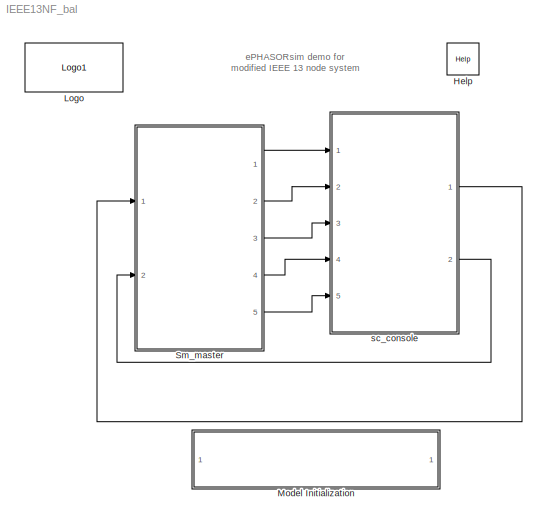
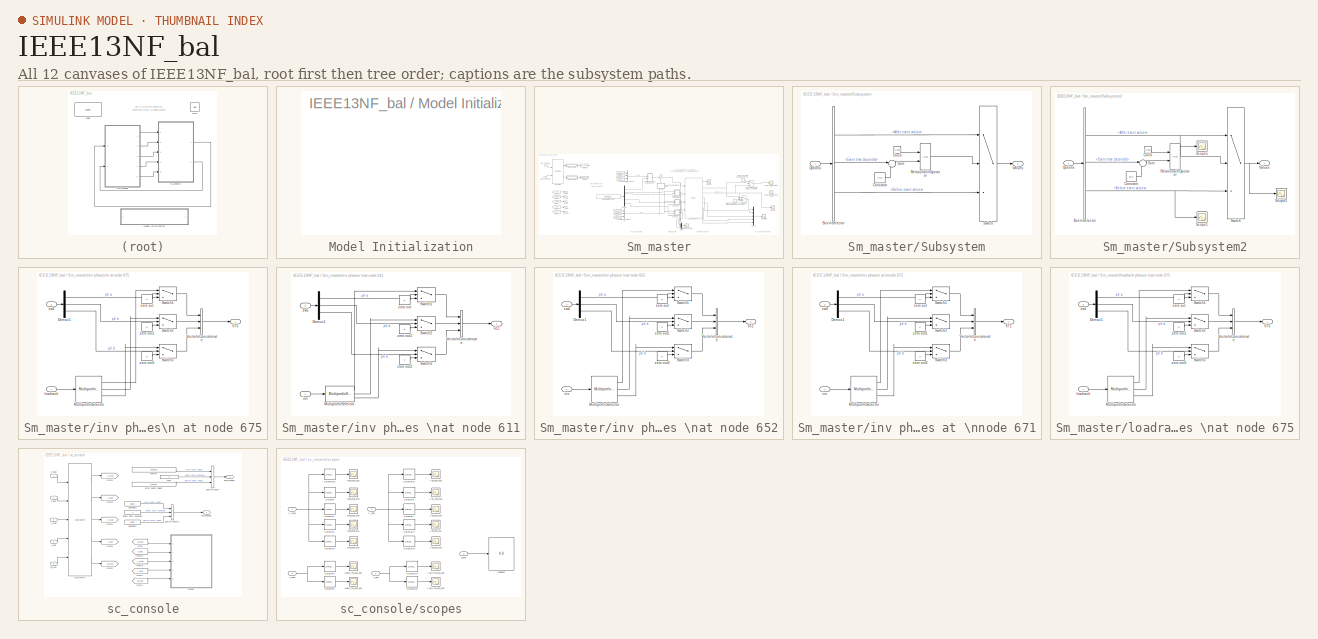
[diagram: thumbnail index - all 12 canvases of the model, root first then tree order]
MODEL IEEE13NF_bal
KIND model
CONFIG InitFcn = Ts=0.01;
CONFIG PostLoadFcn = Ts=0.01;
CONFIG PreLoadFcn = Ts=0.01;
CONFIG StartFcn = Ts=0.01;
BLOCK [Reference] Help  REF=opal_lib/Help
  Ports = []
  SID = 168
  SourceBlock = opal_lib/Help
  SourceType = OpDoc
  docfile = ../help/ePH_IEEE13.html
BLOCK [Reference] Logo  REF=opal_lib/Logo1
  Ports = []
  SID = 169
  SourceBlock = opal_lib/Logo1
  SourceType = Opal-RT logo
  vide = []
BLOCK [SubSystem] Model Initialization
  CopyFcn = set_param(gcb,'LinkStatus','none')
  Ports = []
  RequestExecContextInheritance = off
  SID = 107
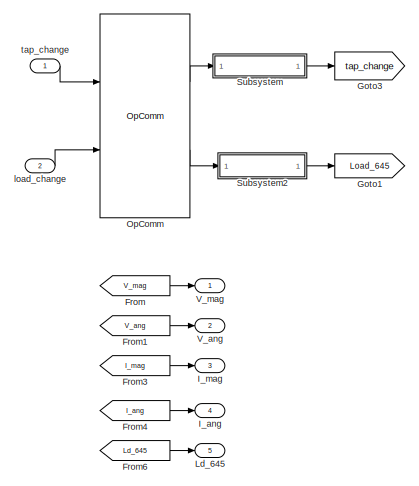
[diagram: Sm_master - part 1/2, middle left region]
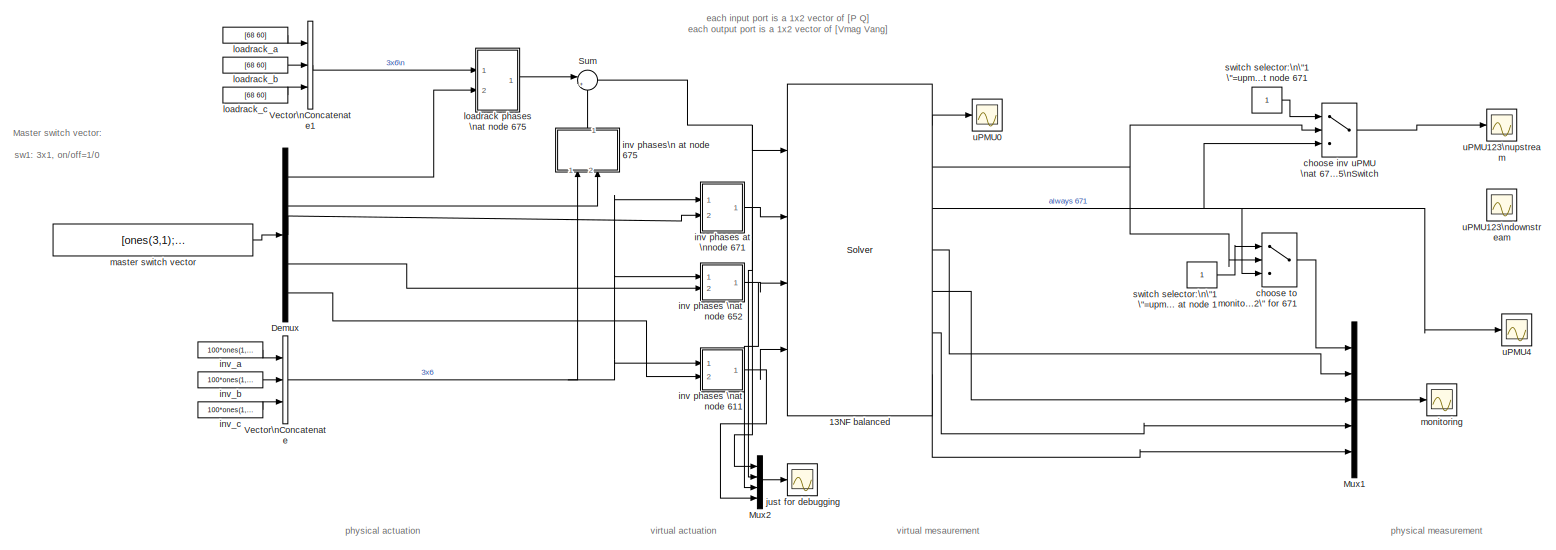
[diagram: Sm_master - part 2/2, most of the canvas]
BLOCK [SubSystem] Sm_master
  Ports = [2, 5]
  RequestExecContextInheritance = off
  SID = 44
BLOCK [Reference] Sm_master/13NF balanced  REF=rtlab_phasor/Solver
  Ports = [4, 7]
  SID = 1
  SourceBlock = rtlab_phasor/Solver
  builtin = on
  capidir = 'CAPI'
  capiprefix = capicomp_
  cyme = 'ieee13.sxst'
  cyme_pf = ''
  cyme_unbalanced = on
  dt = Ts
  dyr = '4992b.dyr'
  epname = System
  exporty = off
  extension = Excel
  fmudir = 'FMU'
  fmuprefix = fmucomp_
  lazy_netlist = on
  logging = off
  np = 1
  optim_threads = off
  perflog_on = off
  pf_export = on
  pf_flat_start = off
  pf_max_it = 100
  pf_smart_start = off
  pf_tol_v = 0.00000001
  powerfactory = 'network.dgs'
  raw = '4992b.raw'
  script_activate_postinit = on
  script_postinit_name = 'manual_python_integration_13NFbal.py'
  sim_mode = Dynamic simulation only (without power-flow)
  xls = '016_GB_IEEE13_balance_all_ver2_OPAL.xls'
BLOCK [Demux] Sm_master/Demux
  DisplayOption = bar
  Outputs = 5
  Ports = [1, 5]
  SID = 605
BLOCK [From] Sm_master/From
  GotoTag = V_mag
  SID = 93
BLOCK [From] Sm_master/From1
  GotoTag = V_ang
  SID = 94
BLOCK [From] Sm_master/From3
  GotoTag = I_mag
  SID = 95
BLOCK [From] Sm_master/From4
  GotoTag = I_ang
  SID = 96
BLOCK [From] Sm_master/From6
  GotoTag = Ld_645
  SID = 97
BLOCK [Goto] Sm_master/Goto1
  GotoTag = Load_645
  SID = 85
BLOCK [Goto] Sm_master/Goto3
  GotoTag = tap_change
  SID = 86
BLOCK [Outport] Sm_master/I_ang
  IconDisplay = Port number
  Port = 4
  SID = 360
BLOCK [Outport] Sm_master/I_mag
  IconDisplay = Port number
  Port = 3
  SID = 359
BLOCK [Outport] Sm_master/Ld_645
  IconDisplay = Port number
  Port = 5
  SID = 361
BLOCK [Mux] Sm_master/Mux1
  DisplayOption = bar
  Inputs = 5
  Ports = [5, 1]
  SID = 514
BLOCK [Mux] Sm_master/Mux2
  DisplayOption = bar
  Ports = [4, 1]
  SID = 632
BLOCK [Reference] Sm_master/OpComm  REF=rtlab/OpComm
  Interpolation = on
  Missed_Data = off
  Offset = off
  Ports = [2, 2]
  SID = 43
  Samples = off
  Sim_Time = off
  SourceBlock = rtlab/OpComm
  SourceType = RT-LAB OpComm
  Synchronization = on
  Threshold = 1.0
  dynSigOut = off
  from_console = 1
  groupe_acq = 1
  nbport = 2
  st = 0
  subsys_rate = 0
  warning_done = off
  writeOpCommFile = off
BLOCK [SubSystem] Sm_master/Subsystem
  Ports = [1, 1]
  RequestExecContextInheritance = off
  SID = 150
BLOCK [BusSelector] Sm_master/Subsystem/Bus\nSelector
  OutputSignals = After event values,Event time (seconds),Before event values
  Ports = [1, 3]
  SID = 152
BLOCK [Clock] Sm_master/Subsystem/Clock
  Decimation = 1
  SID = 153
BLOCK [Constant] Sm_master/Subsystem/Constant
  SID = 154
  Value = Ts/2
BLOCK [Inport] Sm_master/Subsystem/Options
  IconDisplay = Port number
  SID = 151
BLOCK [RelationalOperator] Sm_master/Subsystem/Relational\nOperator
  InputSameDT = off
  OutDataTypeStr = boolean
  Ports = [2, 1]
  SID = 155
BLOCK [Sum] Sm_master/Subsystem/Sum
  IconShape = round
  InputSameDT = off
  Inputs = |+-
  OutDataTypeStr = Inherit: Inherit via internal rule
  Ports = [2, 1]
  SID = 156
  SaturateOnIntegerOverflow = off
BLOCK [Switch] Sm_master/Subsystem/Switch
  InputSameDT = off
  SID = 157
  SaturateOnIntegerOverflow = off
  Threshold = 0.5
BLOCK [Outport] Sm_master/Subsystem/Values
  IconDisplay = Port number
  SID = 158
BLOCK [SubSystem] Sm_master/Subsystem2
  Ports = [1, 1]
  RequestExecContextInheritance = off
  SID = 159
BLOCK [BusSelector] Sm_master/Subsystem2/Bus\nSelector
  OutputSignals = After event values,Event time (seconds),Before event values
  Ports = [1, 3]
  SID = 161
BLOCK [Clock] Sm_master/Subsystem2/Clock
  Decimation = 1
  SID = 162
BLOCK [Constant] Sm_master/Subsystem2/Constant
  SID = 163
  Value = Ts/2
BLOCK [Inport] Sm_master/Subsystem2/Options
  IconDisplay = Port number
  SID = 160
BLOCK [RelationalOperator] Sm_master/Subsystem2/Relational\nOperator
  InputSameDT = off
  OutDataTypeStr = boolean
  Ports = [2, 1]
  SID = 164
BLOCK [Scope] Sm_master/Subsystem2/Scope1
  DataFormat = StructureWithTime
  Floating = off
  LimitDataPoints = off
  NumInputPorts = 1
  Ports = [1]
  SID = 217
  SampleTime = 0
  SaveName = ScopeData14
  ZoomMode = yonly
BLOCK [Scope] Sm_master/Subsystem2/Scope2
  DataFormat = StructureWithTime
  Floating = off
  LimitDataPoints = off
  NumInputPorts = 1
  Ports = [1]
  SID = 218
  SampleTime = 0
  SaveName = ScopeData15
  ZoomMode = yonly
BLOCK [Scope] Sm_master/Subsystem2/Scope5
  DataFormat = StructureWithTime
  Floating = off
  LimitDataPoints = off
  NumInputPorts = 1
  Ports = [1]
  SID = 216
  SampleTime = 0
  SaveName = ScopeData13
  ZoomMode = yonly
BLOCK [Sum] Sm_master/Subsystem2/Sum
  IconShape = round
  InputSameDT = off
  Inputs = |+-
  OutDataTypeStr = Inherit: Inherit via internal rule
  Ports = [2, 1]
  SID = 165
  SaturateOnIntegerOverflow = off
BLOCK [Switch] Sm_master/Subsystem2/Switch
  InputSameDT = off
  SID = 166
  SaturateOnIntegerOverflow = off
  Threshold = 0.5
BLOCK [Outport] Sm_master/Subsystem2/Values
  IconDisplay = Port number
  SID = 167
BLOCK [Sum] Sm_master/Sum
  IconShape = round
  InputSameDT = off
  Inputs = |++
  OutDataTypeStr = Inherit: Inherit via internal rule
  Ports = [2, 1]
  SID = 446
  SaturateOnIntegerOverflow = off
BLOCK [Outport] Sm_master/V_ang
  IconDisplay = Port number
  Port = 2
  SID = 358
BLOCK [Outport] Sm_master/V_mag
  IconDisplay = Port number
  SID = 357
BLOCK [Concatenate] Sm_master/Vector\nConcatenate
  ConcatenateDimension = 2
  Mode = Multidimensional array
  NumInputs = 3
  Ports = [3, 1]
  SID = 608
BLOCK [Concatenate] Sm_master/Vector\nConcatenate1
  ConcatenateDimension = 2
  Mode = Multidimensional array
  NumInputs = 3
  Ports = [3, 1]
  SID = 610
BLOCK [MultiPortSwitch] Sm_master/choose inv uPMU \nat 671 or 675\nSwitch
  InputSameDT = off
  Inputs = 2
  Ports = [3, 1]
  SID = 515
  SaturateOnIntegerOverflow = off
BLOCK [MultiPortSwitch] Sm_master/choose to monitor\n671 or 675\n\"1\" for 675\n\"2\" for 671
  InputSameDT = off
  Inputs = 2
  Ports = [3, 1]
  SID = 517
  SaturateOnIntegerOverflow = off
BLOCK [SubSystem] Sm_master/inv phases \nat node 611
  Ports = [2, 1]
  RequestExecContextInheritance = off
  SID = 590
BLOCK [Outport] Sm_master/inv phases \nat node 611/611
  IconDisplay = Port number
  SID = 602
BLOCK [Demux] Sm_master/inv phases \nat node 611/Demux1
  DisplayOption = bar
  Outputs = 3
  Ports = [1, 3]
  SID = 594
BLOCK [Reference] Sm_master/inv phases \nat node 611/Multiport\nSelector  REF=dspindex/Multiport\nSelector
  Ports = [1, 3]
  SID = 612
  SourceBlock = dspindex/Multiport\nSelector
  SourceType = Multiport Selector
  idxCellArray = { 1, 2, 3 }
  idxErrMode = Clip Index
  rowsOrCols = Columns
BLOCK [Switch] Sm_master/inv phases \nat node 611/Switch1
  Criteria = u2 > Threshold
  InputSameDT = off
  SID = 596
  SaturateOnIntegerOverflow = off
BLOCK [Switch] Sm_master/inv phases \nat node 611/Switch2
  Criteria = u2 > Threshold
  InputSameDT = off
  SID = 597
  SaturateOnIntegerOverflow = off
BLOCK [Switch] Sm_master/inv phases \nat node 611/Switch3
  Criteria = u2 > Threshold
  InputSameDT = off
  SID = 598
  SaturateOnIntegerOverflow = off
BLOCK [Concatenate] Sm_master/inv phases \nat node 611/Vector\nConcatenate
  ConcatenateDimension = 2
  NumInputs = 3
  Ports = [3, 1]
  SID = 623
BLOCK [Inport] Sm_master/inv phases \nat node 611/inv
  IconDisplay = Port number
  SID = 591
BLOCK [Inport] Sm_master/inv phases \nat node 611/sw5
  IconDisplay = Port number
  Port = 2
  SID = 592
BLOCK [Constant] Sm_master/inv phases \nat node 611/zero out
  SID = 599
  Value = 0
BLOCK [Constant] Sm_master/inv phases \nat node 611/zero out1
  SID = 600
  Value = 0
BLOCK [Constant] Sm_master/inv phases \nat node 611/zero out2
  SID = 601
  Value = 0
BLOCK [SubSystem] Sm_master/inv phases \nat node 652
  Ports = [2, 1]
  RequestExecContextInheritance = off
  SID = 577
BLOCK [Outport] Sm_master/inv phases \nat node 652/652
  IconDisplay = Port number
  SID = 589
BLOCK [Demux] Sm_master/inv phases \nat node 652/Demux1
  DisplayOption = bar
  Outputs = 3
  Ports = [1, 3]
  SID = 581
BLOCK [Reference] Sm_master/inv phases \nat node 652/Multiport\nSelector  REF=dspindex/Multiport\nSelector
  Ports = [1, 3]
  SID = 616
  SourceBlock = dspindex/Multiport\nSelector
  SourceType = Multiport Selector
  idxCellArray = { 1, 2, 3 }
  idxErrMode = Clip Index
  rowsOrCols = Columns
BLOCK [Switch] Sm_master/inv phases \nat node 652/Switch1
  Criteria = u2 > Threshold
  InputSameDT = off
  SID = 583
  SaturateOnIntegerOverflow = off
BLOCK [Switch] Sm_master/inv phases \nat node 652/Switch2
  Criteria = u2 > Threshold
  InputSameDT = off
  SID = 584
  SaturateOnIntegerOverflow = off
BLOCK [Switch] Sm_master/inv phases \nat node 652/Switch3
  Criteria = u2 > Threshold
  InputSameDT = off
  SID = 585
  SaturateOnIntegerOverflow = off
BLOCK [Concatenate] Sm_master/inv phases \nat node 652/Vector\nConcatenate
  ConcatenateDimension = 2
  NumInputs = 3
  Ports = [3, 1]
  SID = 622
BLOCK [Inport] Sm_master/inv phases \nat node 652/inv
  IconDisplay = Port number
  SID = 578
BLOCK [Inport] Sm_master/inv phases \nat node 652/sw4
  IconDisplay = Port number
  Port = 2
  SID = 579
BLOCK [Constant] Sm_master/inv phases \nat node 652/zero out
  SID = 586
  Value = 0
BLOCK [Constant] Sm_master/inv phases \nat node 652/zero out1
  SID = 587
  Value = 0
BLOCK [Constant] Sm_master/inv phases \nat node 652/zero out2
  SID = 588
  Value = 0
BLOCK [SubSystem] Sm_master/inv phases at \nnode 671
  Ports = [2, 1]
  RequestExecContextInheritance = off
  SID = 564
BLOCK [Outport] Sm_master/inv phases at \nnode 671/671
  IconDisplay = Port number
  SID = 576
BLOCK [Demux] Sm_master/inv phases at \nnode 671/Demux1
  DisplayOption = bar
  Outputs = 3
  Ports = [1, 3]
  SID = 568
BLOCK [Reference] Sm_master/inv phases at \nnode 671/Multiport\nSelector  REF=dspindex/Multiport\nSelector
  Ports = [1, 3]
  SID = 615
  SourceBlock = dspindex/Multiport\nSelector
  SourceType = Multiport Selector
  idxCellArray = { 1, 2, 3 }
  idxErrMode = Clip Index
  rowsOrCols = Columns
BLOCK [Switch] Sm_master/inv phases at \nnode 671/Switch1
  Criteria = u2 > Threshold
  InputSameDT = off
  SID = 570
  SaturateOnIntegerOverflow = off
BLOCK [Switch] Sm_master/inv phases at \nnode 671/Switch2
  Criteria = u2 > Threshold
  InputSameDT = off
  SID = 571
  SaturateOnIntegerOverflow = off
BLOCK [Switch] Sm_master/inv phases at \nnode 671/Switch3
  Criteria = u2 > Threshold
  InputSameDT = off
  SID = 572
  SaturateOnIntegerOverflow = off
BLOCK [Concatenate] Sm_master/inv phases at \nnode 671/Vector\nConcatenate
  ConcatenateDimension = 2
  NumInputs = 3
  Ports = [3, 1]
  SID = 619
BLOCK [Inport] Sm_master/inv phases at \nnode 671/inv
  IconDisplay = Port number
  SID = 565
BLOCK [Inport] Sm_master/inv phases at \nnode 671/sw3
  IconDisplay = Port number
  Port = 2
  SID = 566
BLOCK [Constant] Sm_master/inv phases at \nnode 671/zero out
  SID = 573
  Value = 0
BLOCK [Constant] Sm_master/inv phases at \nnode 671/zero out1
  SID = 574
  Value = 0
BLOCK [Constant] Sm_master/inv phases at \nnode 671/zero out2
  SID = 575
  Value = 0
BLOCK [SubSystem] Sm_master/inv phases\n at node 675
  Ports = [2, 1]
  RequestExecContextInheritance = off
  SID = 551
BLOCK [Outport] Sm_master/inv phases\n at node 675/675
  IconDisplay = Port number
  SID = 563
BLOCK [Demux] Sm_master/inv phases\n at node 675/Demux1
  DisplayOption = bar
  Outputs = 3
  Ports = [1, 3]
  SID = 555
BLOCK [Reference] Sm_master/inv phases\n at node 675/Multiport\nSelector  REF=dspindex/Multiport\nSelector
  Ports = [1, 3]
  SID = 614
  SourceBlock = dspindex/Multiport\nSelector
  SourceType = Multiport Selector
  idxCellArray = { 1, 2, 3 }
  idxErrMode = Clip Index
  rowsOrCols = Columns
BLOCK [Switch] Sm_master/inv phases\n at node 675/Switch1
  Criteria = u2 > Threshold
  InputSameDT = off
  SID = 557
  SaturateOnIntegerOverflow = off
BLOCK [Switch] Sm_master/inv phases\n at node 675/Switch2
  Criteria = u2 > Threshold
  InputSameDT = off
  SID = 558
  SaturateOnIntegerOverflow = off
BLOCK [Switch] Sm_master/inv phases\n at node 675/Switch3
  Criteria = u2 > Threshold
  InputSameDT = off
  SID = 559
  SaturateOnIntegerOverflow = off
BLOCK [Concatenate] Sm_master/inv phases\n at node 675/Vector\nConcatenate
  ConcatenateDimension = 2
  NumInputs = 3
  Ports = [3, 1]
  SID = 624
BLOCK [Inport] Sm_master/inv phases\n at node 675/loadrack
  IconDisplay = Port number
  SID = 552
BLOCK [Inport] Sm_master/inv phases\n at node 675/sw2
  IconDisplay = Port number
  Port = 2
  SID = 553
BLOCK [Constant] Sm_master/inv phases\n at node 675/zero out
  SID = 560
  Value = 0
BLOCK [Constant] Sm_master/inv phases\n at node 675/zero out1
  SID = 561
  Value = 0
BLOCK [Constant] Sm_master/inv phases\n at node 675/zero out2
  SID = 562
  Value = 0
BLOCK [Constant] Sm_master/inv_a
  SID = 448
  Value = 100*ones(1,2)
BLOCK [Constant] Sm_master/inv_b
  SID = 626
  Value = 100*ones(1,2)
BLOCK [Constant] Sm_master/inv_c
  SID = 627
  Value = 100*ones(1,2)
BLOCK [Scope] Sm_master/just for debugging
  Floating = off
  NumInputPorts = 1
  Ports = [1]
  SID = 631
  SaveName = ScopeData22
BLOCK [Inport] Sm_master/load_change
  IconDisplay = Port number
  Port = 2
  SID = 84
BLOCK [SubSystem] Sm_master/loadrack phases \nat node 675
  Ports = [2, 1]
  RequestExecContextInheritance = off
  SID = 520
BLOCK [Outport] Sm_master/loadrack phases \nat node 675/675
  IconDisplay = Port number
  SID = 533
BLOCK [Demux] Sm_master/loadrack phases \nat node 675/Demux1
  DisplayOption = bar
  Outputs = 3
  Ports = [1, 3]
  SID = 550
BLOCK [Reference] Sm_master/loadrack phases \nat node 675/Multiport\nSelector  REF=dspindex/Multiport\nSelector
  Ports = [1, 3]
  SID = 613
  SourceBlock = dspindex/Multiport\nSelector
  SourceType = Multiport Selector
  idxCellArray = { 1, 2, 3 }
  idxErrMode = Clip Index
  rowsOrCols = Columns
BLOCK [Switch] Sm_master/loadrack phases \nat node 675/Switch1
  Criteria = u2 > Threshold
  InputSameDT = off
  SID = 527
  SaturateOnIntegerOverflow = off
BLOCK [Switch] Sm_master/loadrack phases \nat node 675/Switch2
  Criteria = u2 > Threshold
  InputSameDT = off
  SID = 528
  SaturateOnIntegerOverflow = off
BLOCK [Switch] Sm_master/loadrack phases \nat node 675/Switch3
  Criteria = u2 > Threshold
  InputSameDT = off
  SID = 529
  SaturateOnIntegerOverflow = off
BLOCK [Concatenate] Sm_master/loadrack phases \nat node 675/Vector\nConcatenate
  ConcatenateDimension = 2
  NumInputs = 3
  Ports = [3, 1]
  SID = 625
BLOCK [Inport] Sm_master/loadrack phases \nat node 675/loadrack
  IconDisplay = Port number
  SID = 521
BLOCK [Inport] Sm_master/loadrack phases \nat node 675/sw1
  IconDisplay = Port number
  Port = 2
  SID = 549
BLOCK [Constant] Sm_master/loadrack phases \nat node 675/zero out
  SID = 530
  Value = 0
BLOCK [Constant] Sm_master/loadrack phases \nat node 675/zero out1
  SID = 531
  Value = 0
BLOCK [Constant] Sm_master/loadrack phases \nat node 675/zero out2
  SID = 532
  Value = 0
BLOCK [Constant] Sm_master/loadrack_a
  SID = 628
  Value = [68 60]
BLOCK [Constant] Sm_master/loadrack_b
  SID = 629
  Value = [68 60]
BLOCK [Constant] Sm_master/loadrack_c
  SID = 630
  Value = [68 60]
BLOCK [Constant] Sm_master/master switch vector
  SID = 603
  Value = [ones(3,1); zeros(3,1); ones(9,1)]
BLOCK [Scope] Sm_master/monitoring
  Floating = off
  NumInputPorts = 1
  Ports = [1]
  SID = 519
  SaveName = ScopeData21
BLOCK [Constant] Sm_master/switch selector:\n\"1\"=upmu at node 675\n\"2\"=upmu at node 1
  SID = 518
BLOCK [Constant] Sm_master/switch selector:\n\"1\"=upmu at node 675\n\"2\"=upmu at node 671
  SID = 516
BLOCK [Inport] Sm_master/tap_change
  IconDisplay = Port number
  SID = 51
BLOCK [Scope] Sm_master/uPMU0
  Floating = off
  NumInputPorts = 1
  Ports = [1]
  SID = 404
  SaveName = ScopeData1
BLOCK [Scope] Sm_master/uPMU123\ndownstream
  Floating = off
  NumInputPorts = 1
  Ports = [1]
  SID = 405
  SaveName = ScopeData2
BLOCK [Scope] Sm_master/uPMU123\nupstream
  Floating = off
  NumInputPorts = 1
  Ports = [1]
  SID = 509
  SaveName = ScopeData17
BLOCK [Scope] Sm_master/uPMU4
  Floating = off
  NumInputPorts = 1
  Ports = [1]
  SID = 406
  SaveName = ScopeData16
BLOCK [SubSystem] sc_console
  Ports = [5, 2]
  RequestExecContextInheritance = off
  SID = 60
BLOCK [BusCreator] sc_console/Bus\nCreator
  DisplayOption = bar
  Inputs = 3
  Ports = [3, 1]
  SID = 111
BLOCK [BusCreator] sc_console/Bus\nCreator1
  DisplayOption = bar
  Inputs = 3
  Ports = [3, 1]
  SID = 112
BLOCK [Constant] sc_console/Event Time (seconds)
  SID = 113
BLOCK [From] sc_console/From
  GotoTag = V_mag
  SID = 114
BLOCK [From] sc_console/From1
  GotoTag = Ld_645
  SID = 115
BLOCK [From] sc_console/From2
  GotoTag = V_ang
  SID = 116
BLOCK [From] sc_console/From3
  GotoTag = I_mag
  SID = 300
BLOCK [From] sc_console/From4
  GotoTag = I_ang
  SID = 301
BLOCK [Goto] sc_console/Goto1
  GotoTag = V_mag
  SID = 117
BLOCK [Goto] sc_console/Goto2
  GotoTag = Ld_645
  SID = 118
BLOCK [Goto] sc_console/Goto3
  GotoTag = V_ang
  SID = 119
BLOCK [Goto] sc_console/Goto4
  GotoTag = I_mag
  SID = 309
BLOCK [Goto] sc_console/Goto5
  GotoTag = I_ang
  SID = 307
BLOCK [Inport] sc_console/I_ang
  IconDisplay = Port number
  Port = 4
  SID = 305
BLOCK [Inport] sc_console/I_mag
  IconDisplay = Port number
  Port = 3
  SID = 304
BLOCK [Inport] sc_console/Ld_645
  IconDisplay = Port number
  Port = 5
  SID = 110
BLOCK [Constant] sc_console/LineFault0
  SID = 120
  Value = [8 8 8]
BLOCK [Constant] sc_console/LineFault1
  SID = 121
  Value = [0 0 0]
BLOCK [Reference] sc_console/OpComm1  REF=rtlab/OpComm
  Interpolation = on
  Missed_Data = off
  Offset = off
  Ports = [5, 5]
  SID = 122
  Samples = off
  Sim_Time = off
  SourceBlock = rtlab/OpComm
  SourceType = RT-LAB OpComm
  Synchronization = on
  Threshold = 1.0
  dynSigOut = off
  from_console = 0
  groupe_acq = 1
  nbport = 5
  st = 0
  subsys_rate = 0
  warning_done = off
  writeOpCommFile = off
BLOCK [Inport] sc_console/V-ang
  IconDisplay = Port number
  Port = 2
  SID = 109
BLOCK [Inport] sc_console/V_mag
  IconDisplay = Port number
  SID = 108
BLOCK [Constant] sc_console/after event values
  SID = 123
  Value = [170,125]
BLOCK [Constant] sc_console/before
  SID = 124
  Value = [340,250]
BLOCK [Outport] sc_console/load_change
  IconDisplay = Port number
  Port = 2
  SID = 148
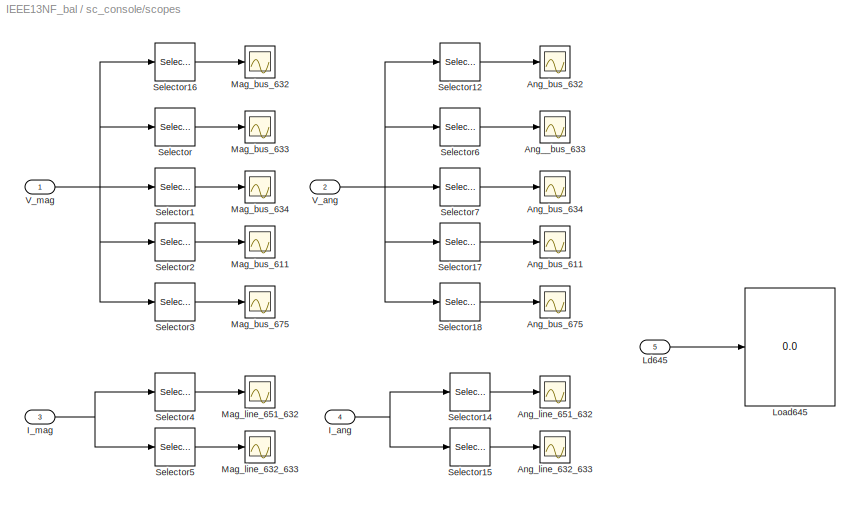
BLOCK [SubSystem] sc_console/scopes
  Ports = [5]
  RequestExecContextInheritance = off
  SID = 125
BLOCK [Scope] sc_console/scopes/Ang__bus_633
  DataFormat = StructureWithTime
  Floating = off
  LimitDataPoints = off
  NumInputPorts = 1
  Ports = [1]
  SID = 129
  SampleTime = 0
  SaveName = ScopeData8
  YMax = 1.07
  YMin = 0.92
BLOCK [Scope] sc_console/scopes/Ang_bus_611
  DataFormat = StructureWithTime
  Floating = off
  LimitDataPoints = off
  NumInputPorts = 1
  Ports = [1]
  SID = 131
  SampleTime = 0
  SaveName = ScopeData10
  YMax = 1.07
  YMin = 0.92
BLOCK [Scope] sc_console/scopes/Ang_bus_632
  DataFormat = StructureWithTime
  Floating = off
  LimitDataPoints = off
  NumInputPorts = 1
  Ports = [1]
  SID = 332
  SampleTime = 0
  SaveName = ScopeData18
  YMax = 1.07
  YMin = 0.92
BLOCK [Scope] sc_console/scopes/Ang_bus_634
  DataFormat = StructureWithTime
  Floating = off
  LimitDataPoints = off
  NumInputPorts = 1
  Ports = [1]
  SID = 130
  SampleTime = 0
  SaveName = ScopeData9
  YMax = 1.07
  YMin = 0.92
BLOCK [Scope] sc_console/scopes/Ang_bus_675
  DataFormat = StructureWithTime
  Floating = off
  LimitDataPoints = off
  NumInputPorts = 1
  Ports = [1]
  SID = 132
  SampleTime = 0
  SaveName = ScopeData11
  YMax = 1.07
  YMin = 0.92
BLOCK [Scope] sc_console/scopes/Ang_line_632_633
  DataFormat = StructureWithTime
  Floating = off
  LimitDataPoints = off
  NumInputPorts = 1
  Ports = [1]
  SID = 337
  SampleTime = 0
  SaveName = ScopeData20
  YMax = 1.07
  YMin = 0.92
BLOCK [Scope] sc_console/scopes/Ang_line_651_632
  DataFormat = StructureWithTime
  Floating = off
  LimitDataPoints = off
  NumInputPorts = 1
  Ports = [1]
  SID = 312
  SampleTime = 0
  YMax = 1.07
  YMin = 0.92
BLOCK [Inport] sc_console/scopes/I_ang
  IconDisplay = Port number
  Port = 4
  SID = 311
BLOCK [Inport] sc_console/scopes/I_mag
  IconDisplay = Port number
  Port = 3
  SID = 310
BLOCK [Inport] sc_console/scopes/Ld645
  IconDisplay = Port number
  Port = 5
  SID = 128
BLOCK [Display] sc_console/scopes/Load645
  Decimation = 1
  Ports = [1]
  SID = 133
BLOCK [Scope] sc_console/scopes/Mag_bus_611
  DataFormat = StructureWithTime
  Floating = off
  LimitDataPoints = off
  NumInputPorts = 1
  Ports = [1]
  SID = 136
  SampleTime = 0
  SaveName = ScopeData6
  YMax = 1.07
  YMin = 0.92
  ZoomMode = yonly
BLOCK [Scope] sc_console/scopes/Mag_bus_632
  DataFormat = StructureWithTime
  Floating = off
  LimitDataPoints = off
  NumInputPorts = 1
  Ports = [1]
  SID = 330
  SampleTime = 0
  SaveName = ScopeData3
  YMax = 1.07
  YMin = 0.92
BLOCK [Scope] sc_console/scopes/Mag_bus_633
  DataFormat = StructureWithTime
  Floating = off
  LimitDataPoints = off
  NumInputPorts = 1
  Ports = [1]
  SID = 134
  SampleTime = 0
  SaveName = ScopeData4
  YMax = 1.07
  YMin = 0.92
BLOCK [Scope] sc_console/scopes/Mag_bus_634
  DataFormat = StructureWithTime
  Floating = off
  LimitDataPoints = off
  NumInputPorts = 1
  Ports = [1]
  SID = 135
  SampleTime = 0
  SaveName = ScopeData5
  YMax = 1.07
  YMin = 0.92
BLOCK [Scope] sc_console/scopes/Mag_bus_675
  DataFormat = StructureWithTime
  Floating = off
  LimitDataPoints = off
  NumInputPorts = 1
  Ports = [1]
  SID = 137
  SampleTime = 0
  SaveName = ScopeData7
  YMax = 1.07
  YMin = 0.92
BLOCK [Scope] sc_console/scopes/Mag_line_632_633
  DataFormat = StructureWithTime
  Floating = off
  LimitDataPoints = off
  NumInputPorts = 1
  Ports = [1]
  SID = 335
  SampleTime = 0
  SaveName = ScopeData19
  YMax = 1.07
  YMin = 0.92
  ZoomMode = xonly
BLOCK [Scope] sc_console/scopes/Mag_line_651_632
  DataFormat = StructureWithTime
  Floating = off
  LimitDataPoints = off
  NumInputPorts = 1
  Ports = [1]
  SID = 316
  SampleTime = 0
  SaveName = ScopeData12
  YMax = 1.07
  YMin = 0.92
  ZoomMode = yonly
BLOCK [Selector] sc_console/scopes/Selector
  Indices = [1 2 3]
  InputPortWidth = 13
  Ports = [1, 1]
  SID = 138
BLOCK [Selector] sc_console/scopes/Selector1
  Indices = [4 5 6]
  InputPortWidth = 13
  Ports = [1, 1]
  SID = 139
BLOCK [Selector] sc_console/scopes/Selector12
  Indices = [11 12 13]
  InputPortWidth = 13
  Ports = [1, 1]
  SID = 349
BLOCK [Selector] sc_console/scopes/Selector14
  Indices = [1 2 3]
  InputPortWidth = 6
  Ports = [1, 1]
  SID = 326
BLOCK [Selector] sc_console/scopes/Selector15
  Indices = [4 5 6]
  InputPortWidth = 6
  Ports = [1, 1]
  SID = 327
BLOCK [Selector] sc_console/scopes/Selector16
  Indices = [11 12 13]
  InputPortWidth = 13
  Ports = [1, 1]
  SID = 334
BLOCK [Selector] sc_console/scopes/Selector17
  Indices = [7]
  InputPortWidth = 13
  Ports = [1, 1]
  SID = 350
BLOCK [Selector] sc_console/scopes/Selector18
  Indices = [8 9 10]
  InputPortWidth = 13
  Ports = [1, 1]
  SID = 351
BLOCK [Selector] sc_console/scopes/Selector2
  Indices = [7]
  InputPortWidth = 13
  Ports = [1, 1]
  SID = 142
BLOCK [Selector] sc_console/scopes/Selector3
  Indices = [8 9 10]
  InputPortWidth = 13
  Ports = [1, 1]
  SID = 143
BLOCK [Selector] sc_console/scopes/Selector4
  Indices = [1 2 3]
  InputPortWidth = 6
  Ports = [1, 1]
  SID = 320
BLOCK [Selector] sc_console/scopes/Selector5
  Indices = [4 5 6]
  InputPortWidth = 6
  Ports = [1, 1]
  SID = 321
BLOCK [Selector] sc_console/scopes/Selector6
  Indices = [1 2 3]
  InputPortWidth = 13
  Ports = [1, 1]
  SID = 347
BLOCK [Selector] sc_console/scopes/Selector7
  Indices = [4 5 6]
  InputPortWidth = 13
  Ports = [1, 1]
  SID = 348
BLOCK [Inport] sc_console/scopes/V_ang
  IconDisplay = Port number
  Port = 2
  SID = 127
BLOCK [Inport] sc_console/scopes/V_mag
  IconDisplay = Port number
  SID = 126
BLOCK [Outport] sc_console/tap_change
  IconDisplay = Port number
  SID = 147
BLOCK [Constant] sc_console/time
  SID = 146
  Value = 5
ANNOTATION (root): ePHASORsim demo for \nmodified IEEE 13 node system
ANNOTATION Sm_master: \n \n Master switch vector: \n sw1: 3x1, on/off=1/0 \n sw2: 3x1 \n sw3: 3x1 \n sw4: 3x1 \n sw5: 3x1 \n hence this vector would be 15x1
ANNOTATION Sm_master: each input port is a 1x2 vector of [P Q]\neach output port is a 1x2 vector of [Vmag Vang]
ANNOTATION Sm_master: physical actuation
ANNOTATION Sm_master: physical measurement
ANNOTATION Sm_master: virtual actuation
ANNOTATION Sm_master: virtual mesaurement
LINE Sm_master/13NF balanced:1 -> Sm_master/uPMU0:1
NET Sm_master/13NF balanced:2 -> Sm_master/choose inv uPMU \nat 671 or 675\nSwitch:2, Sm_master/choose to monitor\n671 or 675\n\"1\" for 675\n\"2\" for 671:2
NET Sm_master/13NF balanced:3 -> Sm_master/choose inv uPMU \nat 671 or 675\nSwitch:3, Sm_master/choose to monitor\n671 or 675\n\"1\" for 675\n\"2\" for 671:3, Sm_master/uPMU4:1
LINE Sm_master/13NF balanced:4 -> Sm_master/Mux1:2
LINE Sm_master/13NF balanced:5 -> Sm_master/Mux1:3
LINE Sm_master/13NF balanced:6 -> Sm_master/Mux1:4
LINE Sm_master/13NF balanced:7 -> Sm_master/Mux1:5
LINE Sm_master/Demux:1 -> Sm_master/loadrack phases \nat node 675:2
LINE Sm_master/Demux:2 -> Sm_master/inv phases\n at node 675:2
LINE Sm_master/Demux:3 -> Sm_master/inv phases at \nnode 671:2
LINE Sm_master/Demux:4 -> Sm_master/inv phases \nat node 652:2
LINE Sm_master/Demux:5 -> Sm_master/inv phases \nat node 611:2
LINE Sm_master/From1:1 -> Sm_master/V_ang:1
LINE Sm_master/From3:1 -> Sm_master/I_mag:1
LINE Sm_master/From4:1 -> Sm_master/I_ang:1
LINE Sm_master/From6:1 -> Sm_master/Ld_645:1
LINE Sm_master/From:1 -> Sm_master/V_mag:1
LINE Sm_master/Mux1:1 -> Sm_master/monitoring:1
LINE Sm_master/Mux2:1 -> Sm_master/just for debugging:1
LINE Sm_master/OpComm:1 -> Sm_master/Subsystem:1
LINE Sm_master/OpComm:2 -> Sm_master/Subsystem2:1
LINE Sm_master/Subsystem/Bus\nSelector:1 -> Sm_master/Subsystem/Switch:1
LINE Sm_master/Subsystem/Bus\nSelector:2 -> Sm_master/Subsystem/Sum:1
LINE Sm_master/Subsystem/Bus\nSelector:3 -> Sm_master/Subsystem/Switch:3
LINE Sm_master/Subsystem/Clock:1 -> Sm_master/Subsystem/Relational\nOperator:1
LINE Sm_master/Subsystem/Constant:1 -> Sm_master/Subsystem/Sum:2
LINE Sm_master/Subsystem/Options:1 -> Sm_master/Subsystem/Bus\nSelector:1
LINE Sm_master/Subsystem/Relational\nOperator:1 -> Sm_master/Subsystem/Switch:2
LINE Sm_master/Subsystem/Sum:1 -> Sm_master/Subsystem/Relational\nOperator:2
LINE Sm_master/Subsystem/Switch:1 -> Sm_master/Subsystem/Values:1
NET Sm_master/Subsystem2/Bus\nSelector:1 -> Sm_master/Subsystem2/Scope5:1, Sm_master/Subsystem2/Switch:1
LINE Sm_master/Subsystem2/Bus\nSelector:2 -> Sm_master/Subsystem2/Sum:1
NET Sm_master/Subsystem2/Bus\nSelector:3 -> Sm_master/Subsystem2/Scope1:1, Sm_master/Subsystem2/Switch:3
LINE Sm_master/Subsystem2/Clock:1 -> Sm_master/Subsystem2/Relational\nOperator:1
LINE Sm_master/Subsystem2/Constant:1 -> Sm_master/Subsystem2/Sum:2
LINE Sm_master/Subsystem2/Options:1 -> Sm_master/Subsystem2/Bus\nSelector:1
LINE Sm_master/Subsystem2/Relational\nOperator:1 -> Sm_master/Subsystem2/Switch:2
LINE Sm_master/Subsystem2/Sum:1 -> Sm_master/Subsystem2/Relational\nOperator:2
NET Sm_master/Subsystem2/Switch:1 -> Sm_master/Subsystem2/Scope2:1, Sm_master/Subsystem2/Values:1
LINE Sm_master/Subsystem2:1 -> Sm_master/Goto1:1
LINE Sm_master/Subsystem:1 -> Sm_master/Goto3:1
NET Sm_master/Sum:1 -> Sm_master/13NF balanced:1, Sm_master/Mux2:1
LINE Sm_master/Vector\nConcatenate1:1 -> Sm_master/loadrack phases \nat node 675:1
NET Sm_master/Vector\nConcatenate:1 -> Sm_master/inv phases \nat node 611:1, Sm_master/inv phases \nat node 652:1, Sm_master/inv phases at \nnode 671:1, Sm_master/inv phases\n at node 675:1
LINE Sm_master/choose inv uPMU \nat 671 or 675\nSwitch:1 -> Sm_master/uPMU123\nupstream:1
LINE Sm_master/choose to monitor\n671 or 675\n\"1\" for 675\n\"2\" for 671:1 -> Sm_master/Mux1:1
LINE Sm_master/inv phases \nat node 611/Demux1:1 -> Sm_master/inv phases \nat node 611/Switch1:2
LINE Sm_master/inv phases \nat node 611/Demux1:2 -> Sm_master/inv phases \nat node 611/Switch2:2
LINE Sm_master/inv phases \nat node 611/Demux1:3 -> Sm_master/inv phases \nat node 611/Switch3:2
LINE Sm_master/inv phases \nat node 611/Multiport\nSelector:1 -> Sm_master/inv phases \nat node 611/Switch1:1
LINE Sm_master/inv phases \nat node 611/Multiport\nSelector:2 -> Sm_master/inv phases \nat node 611/Switch2:1
LINE Sm_master/inv phases \nat node 611/Multiport\nSelector:3 -> Sm_master/inv phases \nat node 611/Switch3:1
LINE Sm_master/inv phases \nat node 611/Switch1:1 -> Sm_master/inv phases \nat node 611/Vector\nConcatenate:1
LINE Sm_master/inv phases \nat node 611/Switch2:1 -> Sm_master/inv phases \nat node 611/Vector\nConcatenate:2
LINE Sm_master/inv phases \nat node 611/Switch3:1 -> Sm_master/inv phases \nat node 611/Vector\nConcatenate:3
LINE Sm_master/inv phases \nat node 611/Vector\nConcatenate:1 -> Sm_master/inv phases \nat node 611/611:1
LINE Sm_master/inv phases \nat node 611/inv:1 -> Sm_master/inv phases \nat node 611/Multiport\nSelector:1
LINE Sm_master/inv phases \nat node 611/sw5:1 -> Sm_master/inv phases \nat node 611/Demux1:1
LINE Sm_master/inv phases \nat node 611/zero out1:1 -> Sm_master/inv phases \nat node 611/Switch2:3
LINE Sm_master/inv phases \nat node 611/zero out2:1 -> Sm_master/inv phases \nat node 611/Switch3:3
LINE Sm_master/inv phases \nat node 611/zero out:1 -> Sm_master/inv phases \nat node 611/Switch1:3
NET Sm_master/inv phases \nat node 611:1 -> Sm_master/13NF balanced:4, Sm_master/Mux2:4
LINE Sm_master/inv phases \nat node 652/Demux1:1 -> Sm_master/inv phases \nat node 652/Switch1:2
LINE Sm_master/inv phases \nat node 652/Demux1:2 -> Sm_master/inv phases \nat node 652/Switch2:2
LINE Sm_master/inv phases \nat node 652/Demux1:3 -> Sm_master/inv phases \nat node 652/Switch3:2
LINE Sm_master/inv phases \nat node 652/Multiport\nSelector:1 -> Sm_master/inv phases \nat node 652/Switch1:1
LINE Sm_master/inv phases \nat node 652/Multiport\nSelector:2 -> Sm_master/inv phases \nat node 652/Switch2:1
LINE Sm_master/inv phases \nat node 652/Multiport\nSelector:3 -> Sm_master/inv phases \nat node 652/Switch3:1
LINE Sm_master/inv phases \nat node 652/Switch1:1 -> Sm_master/inv phases \nat node 652/Vector\nConcatenate:1
LINE Sm_master/inv phases \nat node 652/Switch2:1 -> Sm_master/inv phases \nat node 652/Vector\nConcatenate:2
LINE Sm_master/inv phases \nat node 652/Switch3:1 -> Sm_master/inv phases \nat node 652/Vector\nConcatenate:3
LINE Sm_master/inv phases \nat node 652/Vector\nConcatenate:1 -> Sm_master/inv phases \nat node 652/652:1
LINE Sm_master/inv phases \nat node 652/inv:1 -> Sm_master/inv phases \nat node 652/Multiport\nSelector:1
LINE Sm_master/inv phases \nat node 652/sw4:1 -> Sm_master/inv phases \nat node 652/Demux1:1
LINE Sm_master/inv phases \nat node 652/zero out1:1 -> Sm_master/inv phases \nat node 652/Switch2:3
LINE Sm_master/inv phases \nat node 652/zero out2:1 -> Sm_master/inv phases \nat node 652/Switch3:3
LINE Sm_master/inv phases \nat node 652/zero out:1 -> Sm_master/inv phases \nat node 652/Switch1:3
NET Sm_master/inv phases \nat node 652:1 -> Sm_master/13NF balanced:3, Sm_master/Mux2:3
LINE Sm_master/inv phases at \nnode 671/Demux1:1 -> Sm_master/inv phases at \nnode 671/Switch1:2
LINE Sm_master/inv phases at \nnode 671/Demux1:2 -> Sm_master/inv phases at \nnode 671/Switch2:2
LINE Sm_master/inv phases at \nnode 671/Demux1:3 -> Sm_master/inv phases at \nnode 671/Switch3:2
LINE Sm_master/inv phases at \nnode 671/Multiport\nSelector:1 -> Sm_master/inv phases at \nnode 671/Switch1:1
LINE Sm_master/inv phases at \nnode 671/Multiport\nSelector:2 -> Sm_master/inv phases at \nnode 671/Switch2:1
LINE Sm_master/inv phases at \nnode 671/Multiport\nSelector:3 -> Sm_master/inv phases at \nnode 671/Switch3:1
LINE Sm_master/inv phases at \nnode 671/Switch1:1 -> Sm_master/inv phases at \nnode 671/Vector\nConcatenate:1
LINE Sm_master/inv phases at \nnode 671/Switch2:1 -> Sm_master/inv phases at \nnode 671/Vector\nConcatenate:2
LINE Sm_master/inv phases at \nnode 671/Switch3:1 -> Sm_master/inv phases at \nnode 671/Vector\nConcatenate:3
LINE Sm_master/inv phases at \nnode 671/Vector\nConcatenate:1 -> Sm_master/inv phases at \nnode 671/671:1
LINE Sm_master/inv phases at \nnode 671/inv:1 -> Sm_master/inv phases at \nnode 671/Multiport\nSelector:1
LINE Sm_master/inv phases at \nnode 671/sw3:1 -> Sm_master/inv phases at \nnode 671/Demux1:1
LINE Sm_master/inv phases at \nnode 671/zero out1:1 -> Sm_master/inv phases at \nnode 671/Switch2:3
LINE Sm_master/inv phases at \nnode 671/zero out2:1 -> Sm_master/inv phases at \nnode 671/Switch3:3
LINE Sm_master/inv phases at \nnode 671/zero out:1 -> Sm_master/inv phases at \nnode 671/Switch1:3
NET Sm_master/inv phases at \nnode 671:1 -> Sm_master/13NF balanced:2, Sm_master/Mux2:2
LINE Sm_master/inv phases\n at node 675/Demux1:1 -> Sm_master/inv phases\n at node 675/Switch1:2
LINE Sm_master/inv phases\n at node 675/Demux1:2 -> Sm_master/inv phases\n at node 675/Switch2:2
LINE Sm_master/inv phases\n at node 675/Demux1:3 -> Sm_master/inv phases\n at node 675/Switch3:2
LINE Sm_master/inv phases\n at node 675/Multiport\nSelector:1 -> Sm_master/inv phases\n at node 675/Switch1:1
LINE Sm_master/inv phases\n at node 675/Multiport\nSelector:2 -> Sm_master/inv phases\n at node 675/Switch2:1
LINE Sm_master/inv phases\n at node 675/Multiport\nSelector:3 -> Sm_master/inv phases\n at node 675/Switch3:1
LINE Sm_master/inv phases\n at node 675/Switch1:1 -> Sm_master/inv phases\n at node 675/Vector\nConcatenate:1
LINE Sm_master/inv phases\n at node 675/Switch2:1 -> Sm_master/inv phases\n at node 675/Vector\nConcatenate:2
LINE Sm_master/inv phases\n at node 675/Switch3:1 -> Sm_master/inv phases\n at node 675/Vector\nConcatenate:3
LINE Sm_master/inv phases\n at node 675/Vector\nConcatenate:1 -> Sm_master/inv phases\n at node 675/675:1
LINE Sm_master/inv phases\n at node 675/loadrack:1 -> Sm_master/inv phases\n at node 675/Multiport\nSelector:1
LINE Sm_master/inv phases\n at node 675/sw2:1 -> Sm_master/inv phases\n at node 675/Demux1:1
LINE Sm_master/inv phases\n at node 675/zero out1:1 -> Sm_master/inv phases\n at node 675/Switch2:3
LINE Sm_master/inv phases\n at node 675/zero out2:1 -> Sm_master/inv phases\n at node 675/Switch3:3
LINE Sm_master/inv phases\n at node 675/zero out:1 -> Sm_master/inv phases\n at node 675/Switch1:3
LINE Sm_master/inv phases\n at node 675:1 -> Sm_master/Sum:2
LINE Sm_master/inv_a:1 -> Sm_master/Vector\nConcatenate:1
LINE Sm_master/inv_b:1 -> Sm_master/Vector\nConcatenate:2
LINE Sm_master/inv_c:1 -> Sm_master/Vector\nConcatenate:3
LINE Sm_master/load_change:1 -> Sm_master/OpComm:2
LINE Sm_master/loadrack phases \nat node 675/Demux1:1 -> Sm_master/loadrack phases \nat node 675/Switch1:2
LINE Sm_master/loadrack phases \nat node 675/Demux1:2 -> Sm_master/loadrack phases \nat node 675/Switch2:2
LINE Sm_master/loadrack phases \nat node 675/Demux1:3 -> Sm_master/loadrack phases \nat node 675/Switch3:2
LINE Sm_master/loadrack phases \nat node 675/Multiport\nSelector:1 -> Sm_master/loadrack phases \nat node 675/Switch1:1
LINE Sm_master/loadrack phases \nat node 675/Multiport\nSelector:2 -> Sm_master/loadrack phases \nat node 675/Switch2:1
LINE Sm_master/loadrack phases \nat node 675/Multiport\nSelector:3 -> Sm_master/loadrack phases \nat node 675/Switch3:1
LINE Sm_master/loadrack phases \nat node 675/Switch1:1 -> Sm_master/loadrack phases \nat node 675/Vector\nConcatenate:1
LINE Sm_master/loadrack phases \nat node 675/Switch2:1 -> Sm_master/loadrack phases \nat node 675/Vector\nConcatenate:2
LINE Sm_master/loadrack phases \nat node 675/Switch3:1 -> Sm_master/loadrack phases \nat node 675/Vector\nConcatenate:3
LINE Sm_master/loadrack phases \nat node 675/Vector\nConcatenate:1 -> Sm_master/loadrack phases \nat node 675/675:1
LINE Sm_master/loadrack phases \nat node 675/loadrack:1 -> Sm_master/loadrack phases \nat node 675/Multiport\nSelector:1
LINE Sm_master/loadrack phases \nat node 675/sw1:1 -> Sm_master/loadrack phases \nat node 675/Demux1:1
LINE Sm_master/loadrack phases \nat node 675/zero out1:1 -> Sm_master/loadrack phases \nat node 675/Switch2:3
LINE Sm_master/loadrack phases \nat node 675/zero out2:1 -> Sm_master/loadrack phases \nat node 675/Switch3:3
LINE Sm_master/loadrack phases \nat node 675/zero out:1 -> Sm_master/loadrack phases \nat node 675/Switch1:3
LINE Sm_master/loadrack phases \nat node 675:1 -> Sm_master/Sum:1
LINE Sm_master/loadrack_a:1 -> Sm_master/Vector\nConcatenate1:1
LINE Sm_master/loadrack_b:1 -> Sm_master/Vector\nConcatenate1:2
LINE Sm_master/loadrack_c:1 -> Sm_master/Vector\nConcatenate1:3
LINE Sm_master/master switch vector:1 -> Sm_master/Demux:1
LINE Sm_master/switch selector:\n\"1\"=upmu at node 675\n\"2\"=upmu at node 1:1 -> Sm_master/choose to monitor\n671 or 675\n\"1\" for 675\n\"2\" for 671:1
LINE Sm_master/switch selector:\n\"1\"=upmu at node 675\n\"2\"=upmu at node 671:1 -> Sm_master/choose inv uPMU \nat 671 or 675\nSwitch:1
LINE Sm_master/tap_change:1 -> Sm_master/OpComm:1
LINE Sm_master:1 -> sc_console:1
LINE Sm_master:2 -> sc_console:2
LINE Sm_master:3 -> sc_console:3
LINE Sm_master:4 -> sc_console:4
LINE Sm_master:5 -> sc_console:5
LINE sc_console/Bus\nCreator1:1 -> sc_console/tap_change:1
LINE sc_console/Bus\nCreator:1 -> sc_console/load_change:1
LINE sc_console/Event Time (seconds):1 -> sc_console/Bus\nCreator1:2
LINE sc_console/From1:1 -> sc_console/scopes:5
LINE sc_console/From2:1 -> sc_console/scopes:2
LINE sc_console/From3:1 -> sc_console/scopes:3
LINE sc_console/From4:1 -> sc_console/scopes:4
LINE sc_console/From:1 -> sc_console/scopes:1
LINE sc_console/I_ang:1 -> sc_console/OpComm1:4
LINE sc_console/I_mag:1 -> sc_console/OpComm1:3
LINE sc_console/Ld_645:1 -> sc_console/OpComm1:5
LINE sc_console/LineFault0:1 -> sc_console/Bus\nCreator1:1
LINE sc_console/LineFault1:1 -> sc_console/Bus\nCreator1:3
LINE sc_console/OpComm1:1 -> sc_console/Goto1:1
LINE sc_console/OpComm1:2 -> sc_console/Goto3:1
LINE sc_console/OpComm1:3 -> sc_console/Goto4:1
LINE sc_console/OpComm1:4 -> sc_console/Goto5:1
LINE sc_console/OpComm1:5 -> sc_console/Goto2:1
LINE sc_console/V-ang:1 -> sc_console/OpComm1:2
LINE sc_console/V_mag:1 -> sc_console/OpComm1:1
LINE sc_console/after event values:1 -> sc_console/Bus\nCreator:3
LINE sc_console/before:1 -> sc_console/Bus\nCreator:1
NET sc_console/scopes/I_ang:1 -> sc_console/scopes/Selector14:1, sc_console/scopes/Selector15:1
NET sc_console/scopes/I_mag:1 -> sc_console/scopes/Selector4:1, sc_console/scopes/Selector5:1
LINE sc_console/scopes/Ld645:1 -> sc_console/scopes/Load645:1
LINE sc_console/scopes/Selector12:1 -> sc_console/scopes/Ang_bus_632:1
LINE sc_console/scopes/Selector14:1 -> sc_console/scopes/Ang_line_651_632:1
LINE sc_console/scopes/Selector15:1 -> sc_console/scopes/Ang_line_632_633:1
LINE sc_console/scopes/Selector16:1 -> sc_console/scopes/Mag_bus_632:1
LINE sc_console/scopes/Selector17:1 -> sc_console/scopes/Ang_bus_611:1
LINE sc_console/scopes/Selector18:1 -> sc_console/scopes/Ang_bus_675:1
LINE sc_console/scopes/Selector1:1 -> sc_console/scopes/Mag_bus_634:1
LINE sc_console/scopes/Selector2:1 -> sc_console/scopes/Mag_bus_611:1
LINE sc_console/scopes/Selector3:1 -> sc_console/scopes/Mag_bus_675:1
LINE sc_console/scopes/Selector4:1 -> sc_console/scopes/Mag_line_651_632:1
LINE sc_console/scopes/Selector5:1 -> sc_console/scopes/Mag_line_632_633:1
LINE sc_console/scopes/Selector6:1 -> sc_console/scopes/Ang__bus_633:1
LINE sc_console/scopes/Selector7:1 -> sc_console/scopes/Ang_bus_634:1
LINE sc_console/scopes/Selector:1 -> sc_console/scopes/Mag_bus_633:1
NET sc_console/scopes/V_ang:1 -> sc_console/scopes/Selector12:1, sc_console/scopes/Selector17:1, sc_console/scopes/Selector18:1, sc_console/scopes/Selector6:1, sc_console/scopes/Selector7:1
NET sc_console/scopes/V_mag:1 -> sc_console/scopes/Selector16:1, sc_console/scopes/Selector1:1, sc_console/scopes/Selector2:1, sc_console/scopes/Selector3:1, sc_console/scopes/Selector:1
LINE sc_console/time:1 -> sc_console/Bus\nCreator:2
LINE sc_console:1 -> Sm_master:1
LINE sc_console:2 -> Sm_master:2
note: NET lines group one-source signal fan-out (src -> all destinations, sorted); 1:1 wires keep LINE
